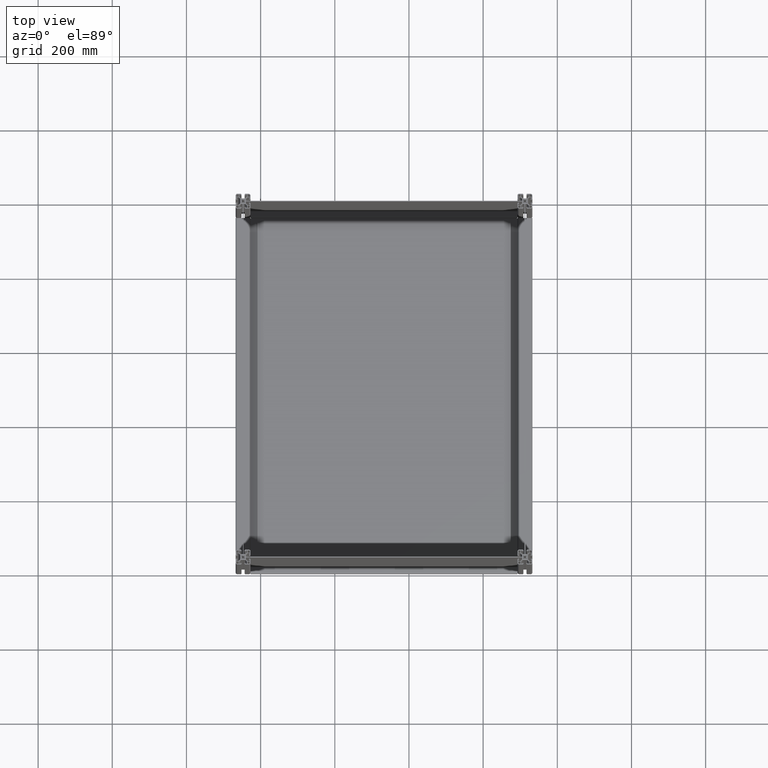
[diagram: clean part render]
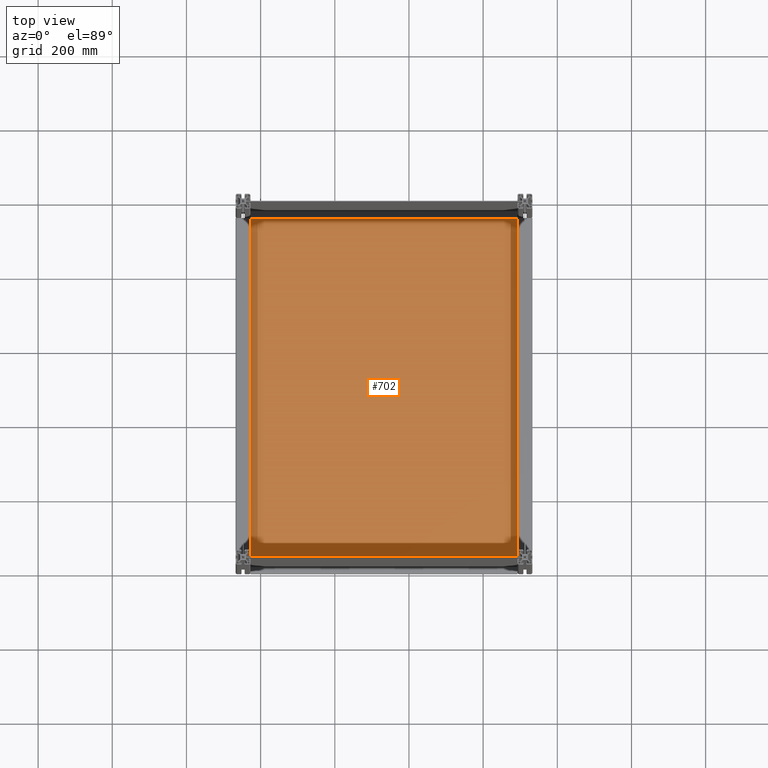
[diagram: same view with one face highlighted and labeled with its STEP entity id]
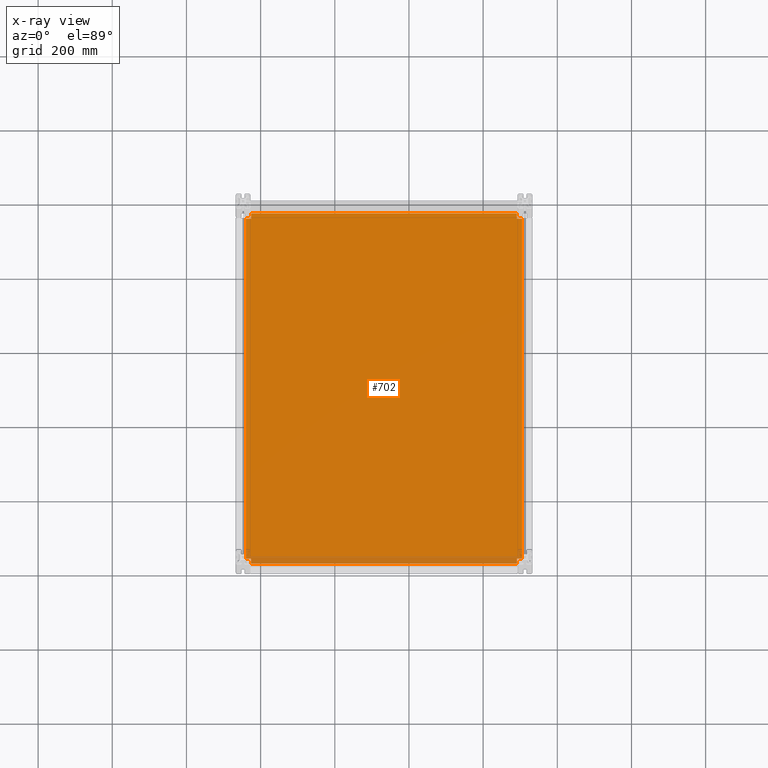
[diagram: x-ray of the same camera — body ghosted, the highlighted face saturated]
A machine part, top view. The second image highlights one B-rep face of the part: STEP entity #702.
The next image is the same camera in x-ray: the body ghosted, the highlighted face saturated — about 2% of this face is hidden behind the body in this view.
In plain terms, the highlighted planar face has unit normal (0, 0, -1).
Its self-contained STEP definition (entity closure, byte-faithful):
#52 = ORIENTED_EDGE ( 'NONE', *, *, #6782, .T. ) ;
#449 = CARTESIAN_POINT ( 'NONE',  ( 0.000000000000000000, 243.8730375426625301, -2.000000000000000000 ) ) ;
#702 = ADVANCED_FACE ( 'NONE', ( #14007 ), #13369, .F. ) ;
#1034 = VECTOR ( 'NONE', #9355, 1000.000000000000000 ) ;
#1306 = VECTOR ( 'NONE', #16326, 1000.000000000000000 ) ;
#1322 = LINE ( 'NONE', #449, #1034 ) ;
#1333 = CARTESIAN_POINT ( 'NONE',  ( 130.0730375426620924, 0.000000000000000000, -2.000000000000000000 ) ) ;
#1618 = DIRECTION ( 'NONE',  ( 1.000000000000000000, 0.000000000000000000, -0.000000000000000000 ) ) ;
#1930 = DIRECTION ( 'NONE',  ( -1.000000000000000000, -0.000000000000000000, 0.000000000000000000 ) ) ;
#2080 = VERTEX_POINT ( 'NONE', #7617 ) ;
#2151 = DIRECTION ( 'NONE',  ( -1.000000000000000000, 0.000000000000000000, 0.000000000000000000 ) ) ;
#2445 = VECTOR ( 'NONE', #12047, 1000.000000000000000 ) ;
#2637 = LINE ( 'NONE', #4099, #8005 ) ;
#3075 = VERTEX_POINT ( 'NONE', #12064 ) ;
#3253 = CARTESIAN_POINT ( 'NONE',  ( -600.7269624573377769, -686.9269624573373676, -2.000000000000001776 ) ) ;
#3636 = ORIENTED_EDGE ( 'NONE', *, *, #3814, .T. ) ;
#3724 = VECTOR ( 'NONE', #11015, 1000.000000000000000 ) ;
#3792 = CARTESIAN_POINT ( 'NONE',  ( 144.0730375426620924, -672.9269624573373676, -2.000000000000001776 ) ) ;
#3812 = VERTEX_POINT ( 'NONE', #15335 ) ;
#3814 = EDGE_CURVE ( 'NONE', #10063, #3812, #9019, .T. ) ;
#4040 = LINE ( 'NONE', #8304, #14687 ) ;
#4099 = CARTESIAN_POINT ( 'NONE',  ( 0.000000000000000000, 243.8730375426625301, -2.000000000000000000 ) ) ;
#4402 = CARTESIAN_POINT ( 'NONE',  ( -586.7269624573378906, 0.000000000000000000, -2.000000000000000000 ) ) ;
#4581 = ORIENTED_EDGE ( 'NONE', *, *, #10826, .T. ) ;
#4920 = AXIS2_PLACEMENT_3D ( 'NONE', #7005, #15854, #8351 ) ;
#5135 = VERTEX_POINT ( 'NONE', #10955 ) ;
#5287 = ORIENTED_EDGE ( 'NONE', *, *, #11301, .T. ) ;
#5402 = ORIENTED_EDGE ( 'NONE', *, *, #10225, .F. ) ;
#6016 = ORIENTED_EDGE ( 'NONE', *, *, #12297, .T. ) ;
#6284 = CARTESIAN_POINT ( 'NONE',  ( -600.7269624573378906, 257.8730375426625301, -2.000000000000000000 ) ) ;
#6504 = VERTEX_POINT ( 'NONE', #7176 ) ;
#6782 = EDGE_CURVE ( 'NONE', #2080, #3075, #11132, .T. ) ;
#6835 = ORIENTED_EDGE ( 'NONE', *, *, #12242, .T. ) ;
#6944 = CARTESIAN_POINT ( 'NONE',  ( -586.7269624573378906, 243.8730375426625301, -2.000000000000000000 ) ) ;
#7005 = CARTESIAN_POINT ( 'NONE',  ( 0.000000000000000000, 0.000000000000000000, -2.000000000000000000 ) ) ;
#7073 = CARTESIAN_POINT ( 'NONE',  ( 144.0730375426619787, 257.8730375426625301, -2.000000000000001776 ) ) ;
#7176 = CARTESIAN_POINT ( 'NONE',  ( -586.7269624573378906, 257.8730375426625301, -2.000000000000000000 ) ) ;
#7300 = VECTOR ( 'NONE', #14602, 1000.000000000000000 ) ;
#7426 = CARTESIAN_POINT ( 'NONE',  ( 130.0730375426620924, -672.9269624573373676, -2.000000000000000000 ) ) ;
#7469 = CARTESIAN_POINT ( 'NONE',  ( 130.0730375426619787, 257.8730375426625301, -2.000000000000000000 ) ) ;
#7617 = CARTESIAN_POINT ( 'NONE',  ( -586.7269624573378906, -686.9269624573373676, -2.000000000000001776 ) ) ;
#7918 = VECTOR ( 'NONE', #12397, 1000.000000000000000 ) ;
#7919 = VERTEX_POINT ( 'NONE', #9662 ) ;
#7983 = VERTEX_POINT ( 'NONE', #10948 ) ;
#8005 = VECTOR ( 'NONE', #1618, 1000.000000000000000 ) ;
#8304 = CARTESIAN_POINT ( 'NONE',  ( -586.7269624573378906, 0.000000000000000000, -2.000000000000000000 ) ) ;
#8351 = DIRECTION ( 'NONE',  ( 1.000000000000000000, 0.000000000000000000, 0.000000000000000000 ) ) ;
#9019 = LINE ( 'NONE', #1333, #3724 ) ;
#9355 = DIRECTION ( 'NONE',  ( 1.000000000000000000, 0.000000000000000000, -0.000000000000000000 ) ) ;
#9456 = CARTESIAN_POINT ( 'NONE',  ( 0.000000000000000000, -672.9269624573373676, -2.000000000000000000 ) ) ;
#9662 = CARTESIAN_POINT ( 'NONE',  ( -600.7269624573378906, -672.9269624573373676, -2.000000000000000000 ) ) ;
#9866 = DIRECTION ( 'NONE',  ( 0.000000000000000000, 1.000000000000000000, 0.000000000000000000 ) ) ;
#9960 = EDGE_LOOP ( 'NONE', ( #9989, #4581, #12341, #11029, #11169, #3636, #5287, #52, #6016, #5402, #6835, #15333 ) ) ;
#9989 = ORIENTED_EDGE ( 'NONE', *, *, #12671, .F. ) ;
#10063 = VERTEX_POINT ( 'NONE', #7426 ) ;
#10225 = EDGE_CURVE ( 'NONE', #13229, #7919, #12918, .T. ) ;
#10383 = CARTESIAN_POINT ( 'NONE',  ( 0.000000000000000000, -672.9269624573373676, -2.000000000000000000 ) ) ;
#10657 = LINE ( 'NONE', #9456, #15851 ) ;
#10776 = CARTESIAN_POINT ( 'NONE',  ( -600.7269624573378906, 243.8730375426625301, -2.000000000000000000 ) ) ;
#10826 = EDGE_CURVE ( 'NONE', #15438, #5135, #12417, .T. ) ;
#10841 = VECTOR ( 'NONE', #2151, 1000.000000000000000 ) ;
#10922 = VECTOR ( 'NONE', #11898, 1000.000000000000000 ) ;
#10948 = CARTESIAN_POINT ( 'NONE',  ( 144.0730375426619787, 243.8730375426625301, -2.000000000000001776 ) ) ;
#10955 = CARTESIAN_POINT ( 'NONE',  ( 130.0730375426619787, 243.8730375426625301, -2.000000000000000000 ) ) ;
#10973 = LINE ( 'NONE', #6284, #10841 ) ;
#11015 = DIRECTION ( 'NONE',  ( 0.000000000000000000, -1.000000000000000000, 0.000000000000000000 ) ) ;
#11029 = ORIENTED_EDGE ( 'NONE', *, *, #11296, .T. ) ;
#11132 = LINE ( 'NONE', #4402, #11334 ) ;
#11169 = ORIENTED_EDGE ( 'NONE', *, *, #15481, .T. ) ;
#11280 = CARTESIAN_POINT ( 'NONE',  ( -600.7269624573378906, 257.8730375426625301, -2.000000000000000000 ) ) ;
#11296 = EDGE_CURVE ( 'NONE', #7983, #14028, #13155, .T. ) ;
#11301 = EDGE_CURVE ( 'NONE', #3812, #2080, #13413, .T. ) ;
#11334 = VECTOR ( 'NONE', #13362, 1000.000000000000000 ) ;
#11898 = DIRECTION ( 'NONE',  ( -1.000000000000000000, -0.000000000000000000, 0.000000000000000000 ) ) ;
#12047 = DIRECTION ( 'NONE',  ( -1.000000000000000000, 0.000000000000000000, 0.000000000000000000 ) ) ;
#12064 = CARTESIAN_POINT ( 'NONE',  ( -586.7269624573378906, -672.9269624573373676, -2.000000000000000000 ) ) ;
#12242 = EDGE_CURVE ( 'NONE', #13229, #12269, #1322, .T. ) ;
#12269 = VERTEX_POINT ( 'NONE', #6944 ) ;
#12297 = EDGE_CURVE ( 'NONE', #3075, #7919, #10657, .T. ) ;
#12341 = ORIENTED_EDGE ( 'NONE', *, *, #14142, .T. ) ;
#12397 = DIRECTION ( 'NONE',  ( 1.175087875344153949E-16, -1.000000000000000000, 0.000000000000000000 ) ) ;
#12417 = LINE ( 'NONE', #12929, #7300 ) ;
#12671 = EDGE_CURVE ( 'NONE', #15438, #6504, #10973, .T. ) ;
#12918 = LINE ( 'NONE', #11280, #1306 ) ;
#12929 = CARTESIAN_POINT ( 'NONE',  ( 130.0730375426619787, 0.000000000000000000, -2.000000000000000000 ) ) ;
#13155 = LINE ( 'NONE', #7073, #7918 ) ;
#13229 = VERTEX_POINT ( 'NONE', #10776 ) ;
#13362 = DIRECTION ( 'NONE',  ( 0.000000000000000000, 1.000000000000000000, 0.000000000000000000 ) ) ;
#13369 = PLANE ( 'NONE',  #4920 ) ;
#13413 = LINE ( 'NONE', #3253, #2445 ) ;
#14007 = FACE_OUTER_BOUND ( 'NONE', #9960, .T. ) ;
#14028 = VERTEX_POINT ( 'NONE', #3792 ) ;
#14142 = EDGE_CURVE ( 'NONE', #5135, #7983, #2637, .T. ) ;
#14602 = DIRECTION ( 'NONE',  ( 0.000000000000000000, -1.000000000000000000, 0.000000000000000000 ) ) ;
#14687 = VECTOR ( 'NONE', #9866, 1000.000000000000000 ) ;
#14901 = EDGE_CURVE ( 'NONE', #12269, #6504, #4040, .T. ) ;
#15333 = ORIENTED_EDGE ( 'NONE', *, *, #14901, .T. ) ;
#15335 = CARTESIAN_POINT ( 'NONE',  ( 130.0730375426620924, -686.9269624573373676, -2.000000000000001776 ) ) ;
#15438 = VERTEX_POINT ( 'NONE', #7469 ) ;
#15481 = EDGE_CURVE ( 'NONE', #14028, #10063, #16310, .T. ) ;
#15851 = VECTOR ( 'NONE', #1930, 1000.000000000000000 ) ;
#15854 = DIRECTION ( 'NONE',  ( 0.000000000000000000, 0.000000000000000000, 1.000000000000000000 ) ) ;
#16310 = LINE ( 'NONE', #10383, #10922 ) ;
#16326 = DIRECTION ( 'NONE',  ( 0.000000000000000000, -1.000000000000000000, 0.000000000000000000 ) ) ;